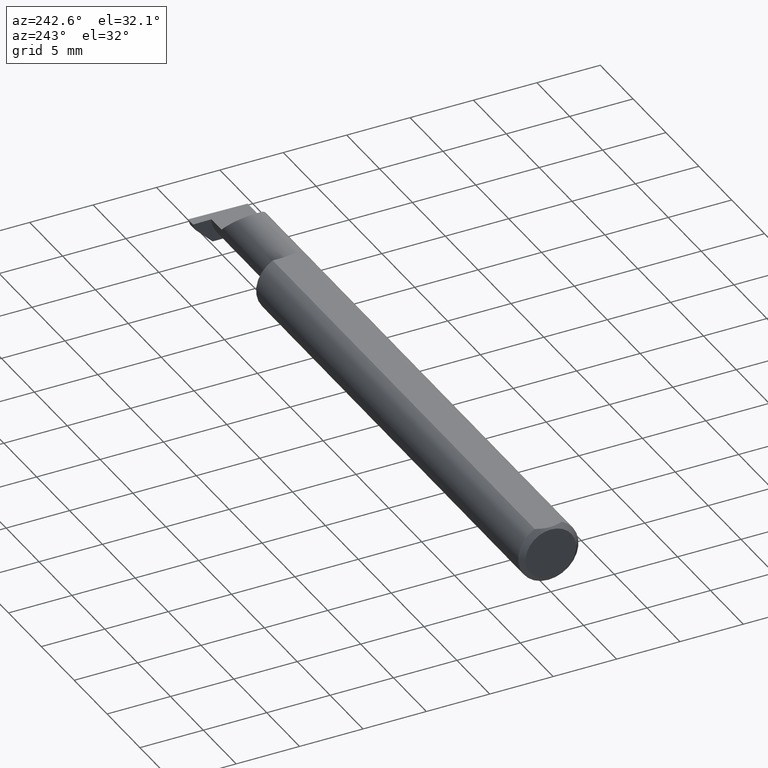
[diagram: clean part render]
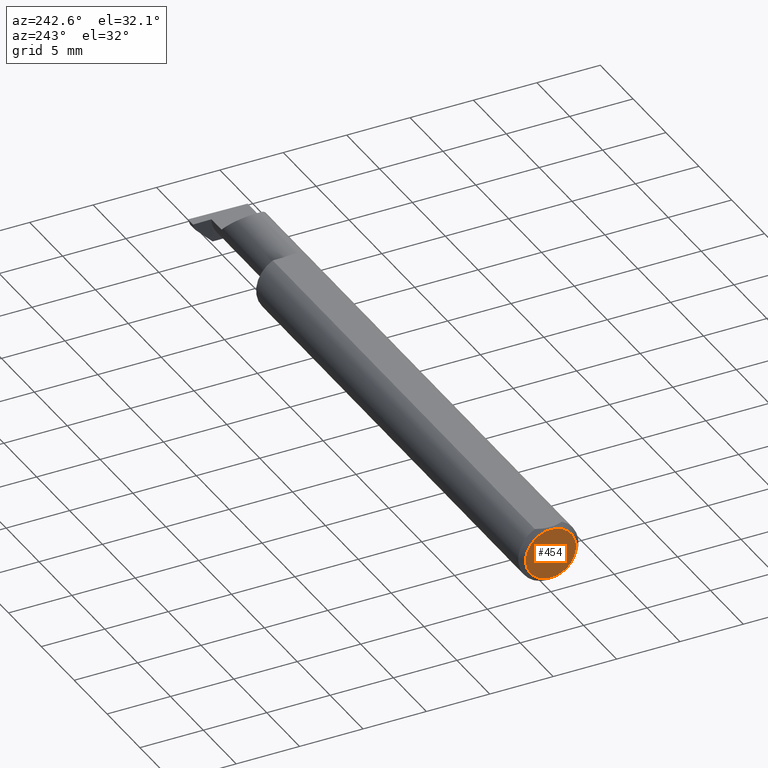
[diagram: same view with one face highlighted and labeled with its STEP entity id]
A machine part, auxiliary view. The second image highlights one B-rep face of the part: STEP entity #454.
In plain terms, the highlighted planar face has unit normal (1, 0, 0).
Its self-contained STEP definition (entity closure, byte-faithful):
#1 = AXIS2_PLACEMENT_3D ( 'NONE', #582, #761, #158 ) ;
#28 = AXIS2_PLACEMENT_3D ( 'NONE', #422, #289, #353 ) ;
#80 = VERTEX_POINT ( 'NONE', #140 ) ;
#127 = DIRECTION ( 'NONE',  ( 0.000000000000000000, 0.000000000000000000, 1.000000000000000000 ) ) ;
#140 = CARTESIAN_POINT ( 'NONE',  ( 0.000000000000000000, 0.000000000000000000, -0.07860000000000001708 ) ) ;
#158 = DIRECTION ( 'NONE',  ( 0.000000000000000000, 0.000000000000000000, 1.000000000000000000 ) ) ;
#200 = CIRCLE ( 'NONE', #1, 0.07860000000000001708 ) ;
#209 = AXIS2_PLACEMENT_3D ( 'NONE', #438, #782, #127 ) ;
#237 = FACE_OUTER_BOUND ( 'NONE', #485, .T. ) ;
#246 = EDGE_CURVE ( 'NONE', #80, #439, #629, .T. ) ;
#271 = ORIENTED_EDGE ( 'NONE', *, *, #246, .T. ) ;
#289 = DIRECTION ( 'NONE',  ( 1.000000000000000000, 0.000000000000000000, 0.000000000000000000 ) ) ;
#343 = PLANE ( 'NONE',  #28 ) ;
#346 = ORIENTED_EDGE ( 'NONE', *, *, #403, .T. ) ;
#353 = DIRECTION ( 'NONE',  ( 0.000000000000000000, 0.000000000000000000, -1.000000000000000000 ) ) ;
#403 = EDGE_CURVE ( 'NONE', #439, #80, #200, .T. ) ;
#422 = CARTESIAN_POINT ( 'NONE',  ( 0.000000000000000000, 0.000000000000000000, 0.000000000000000000 ) ) ;
#438 = CARTESIAN_POINT ( 'NONE',  ( 0.000000000000000000, 0.000000000000000000, 0.000000000000000000 ) ) ;
#439 = VERTEX_POINT ( 'NONE', #694 ) ;
#454 = ADVANCED_FACE ( 'NONE', ( #237 ), #343, .F. ) ;
#485 = EDGE_LOOP ( 'NONE', ( #271, #346 ) ) ;
#582 = CARTESIAN_POINT ( 'NONE',  ( 0.000000000000000000, 0.000000000000000000, 0.000000000000000000 ) ) ;
#629 = CIRCLE ( 'NONE', #209, 0.07860000000000001708 ) ;
#694 = CARTESIAN_POINT ( 'NONE',  ( 0.000000000000000000, 1.054420894065871180E-17, 0.07860000000000001708 ) ) ;
#761 = DIRECTION ( 'NONE',  ( -1.000000000000000000, -0.000000000000000000, -0.000000000000000000 ) ) ;
#782 = DIRECTION ( 'NONE',  ( -1.000000000000000000, -0.000000000000000000, -0.000000000000000000 ) ) ;